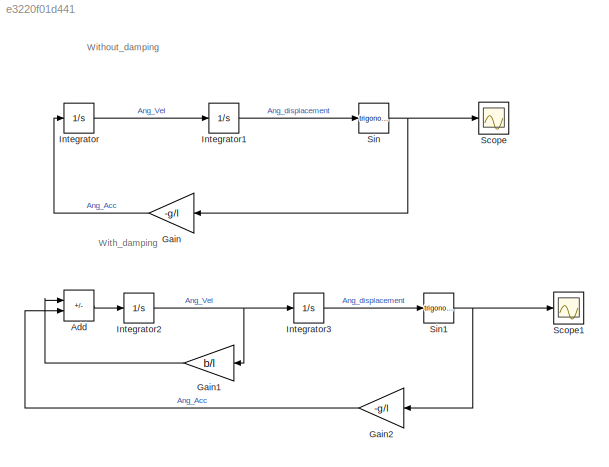
MODEL slx_e3220f01d441
KIND model
CONFIG AbsTol = auto
CONFIG EnableMultiTasking = off
CONFIG FixedStep = 1e-3
CONFIG MaxStep = auto
CONFIG MinStep = auto
CONFIG RelTol = 1e-3
CONFIG SampleTimeConstraint = Unconstrained
CONFIG SolverName = FixedStepAuto
CONFIG StartTime = 0.0
CONFIG StopTime = 10.0
BLOCK [Sum] Add
  IconShape = rectangular
  Inputs = --
BLOCK [Gain] Gain
  Gain = -g/l
BLOCK [Gain] Gain1
  Gain = b/l
BLOCK [Gain] Gain2
  Gain = -g/l
BLOCK [Integrator] Integrator
BLOCK [Integrator] Integrator1
  InitialCondition = 2
BLOCK [Integrator] Integrator2
BLOCK [Integrator] Integrator3
  InitialCondition = 2
BLOCK [Scope] Scope
  Floating = off
  NumInputPorts = 1
  ScopeSpecificationString = Simulink.scopes.TimeScopeBlockCfg('CurrentConfiguration', extmgr.ConfigurationSet(extmgr.Configuration('Core','General UI',true),extmgr.Configuration('Core','Source UI',true),extmgr.Configuration('Sources','WiredSimulink',true),extmgr.Configuration('Visuals','Time Domain',true,'SerializedDisplays',{struct('MinYLimReal','-1.25','MaxYLimReal','1.25','YLabelReal','','MinYLimMag','0.00000','MaxYLimMag...<+1373ch>
BLOCK [Scope] Scope1
  Floating = off
  NumInputPorts = 1
  ScopeSpecificationString = Simulink.scopes.TimeScopeBlockCfg('CurrentConfiguration', extmgr.ConfigurationSet(extmgr.Configuration('Core','General UI',true),extmgr.Configuration('Core','Source UI',true),extmgr.Configuration('Sources','WiredSimulink',true,'DataLoggingVariableName','ScopeData1'),extmgr.Configuration('Visuals','Time Domain',true,'SerializedDisplays',{struct('MinYLimReal','-0.96589','MaxYLimReal','1.11765','YLab...<+1405ch>
BLOCK [Trigonometry] Sin
BLOCK [Trigonometry] Sin1
ANNOTATION (root): With_damping
ANNOTATION (root): Without_damping
LINE Add:1 -> Integrator2:1
LINE Gain1:1 -> Add:1
LINE Gain2:1 -> Add:2
LINE Gain:1 -> Integrator:1
LINE Integrator1:1 -> Sin:1
NET Integrator2:1 -> Gain1:1, Integrator3:1
LINE Integrator3:1 -> Sin1:1
LINE Integrator:1 -> Integrator1:1
NET Sin1:1 -> Gain2:1, Scope1:1
NET Sin:1 -> Gain:1, Scope:1
note: NET lines group one-source signal fan-out (src -> all destinations, sorted); 1:1 wires keep LINE
